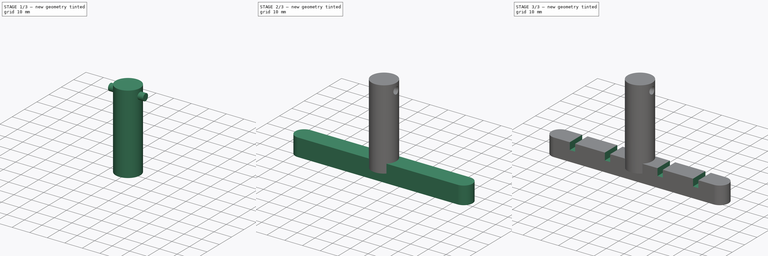
[diagram: build sequence overview — one tinted view per stage of 3, left to right]
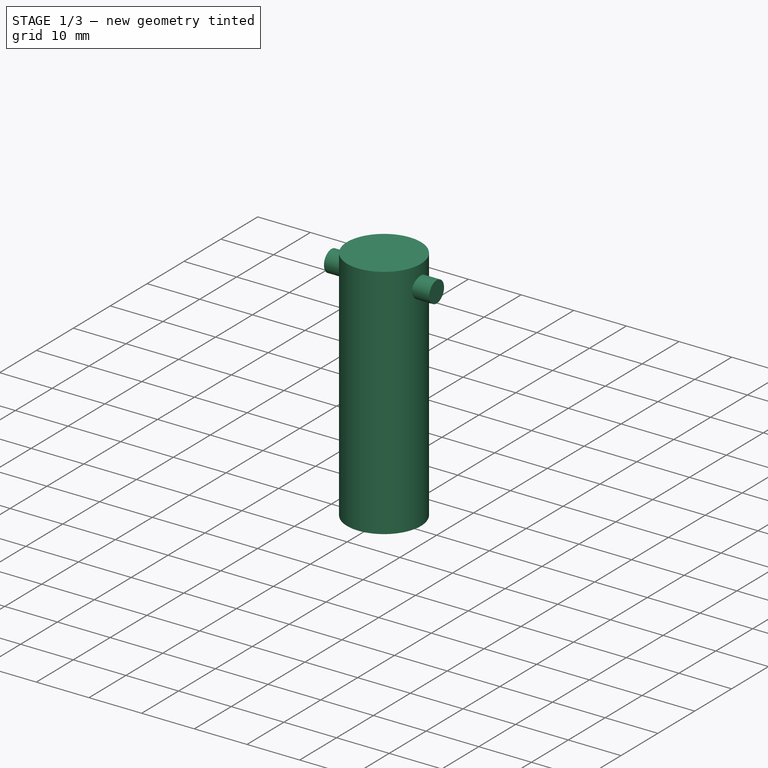
[diagram: stage 1 of 3 — iso view after this stage's code; geometry added in this stage tinted green]
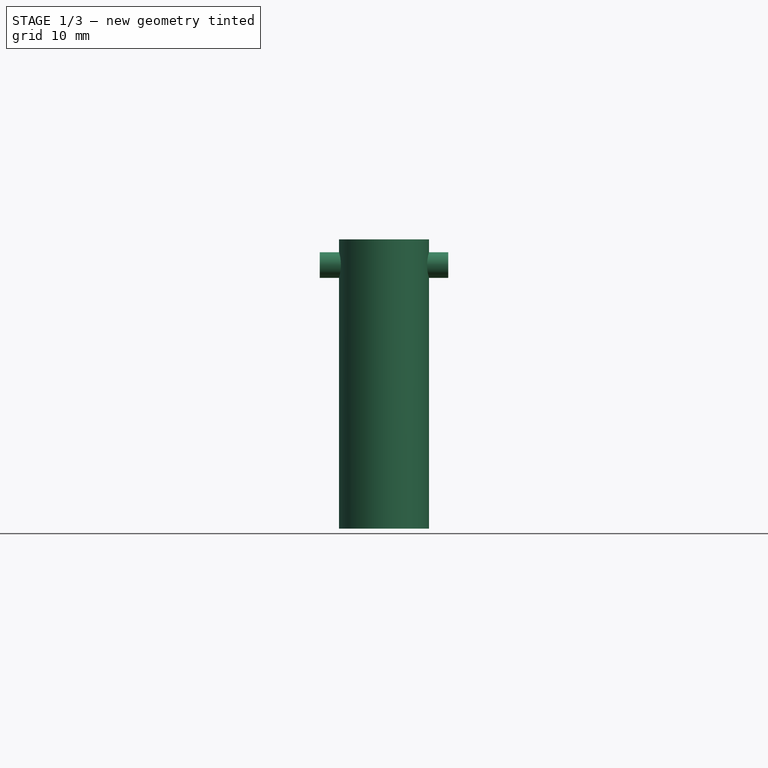
[diagram: stage 1 of 3 — front view after this stage's code; geometry added in this stage tinted green]
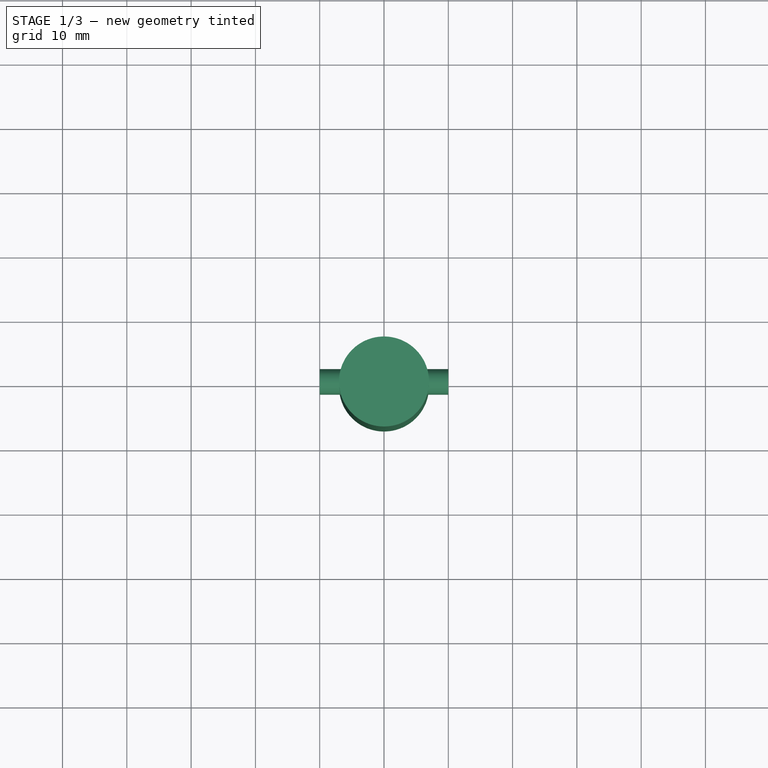
[diagram: stage 1 of 3 — top view after this stage's code; geometry added in this stage tinted green]
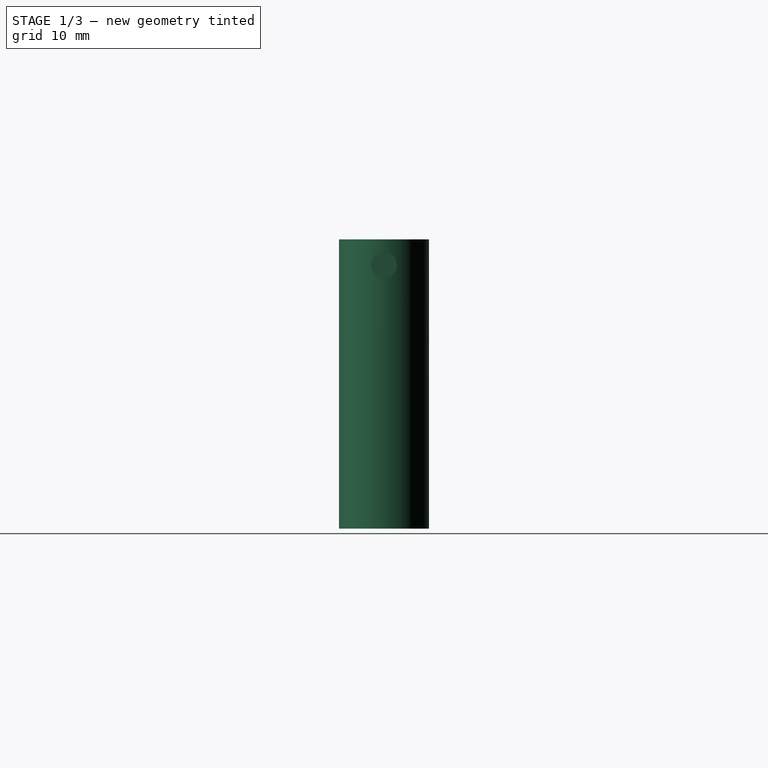
[diagram: stage 1 of 3 — right view after this stage's code; geometry added in this stage tinted green]
FCSTD DOCUMENT  (FreeCAD 0.16R6704 (Git))
Label: soporte pintura inferior
License: All rights reserved
LicenseURL: http://en.wikipedia.org/wiki/All_rights_reserved
objects: Sketcher::SketchObject×4, PartDesign::Pad×3, PartDesign::Fillet×1, PartDesign::Pocket×1, Part::Cut×1, Part::MultiFuse×1
note: 15 computed .brp shape members not serialized (recipe doc carries the construction recipe); baked Part::Feature solids carry a one-line shape summary decoded from their .brp

FEATURE [Sketcher::SketchObject] Sketch
  sketch-geometry (1):
    g0: Circle CenterX=0 CenterY=0 CenterZ=0 NormalX=0 NormalY=0 NormalZ=1 Radius=7
  constraints (2):
    c: Coincident(g0,g-1)
    c: Radius(g0) = 7
FEATURE [PartDesign::Pad] Pad
  Length = 45
  Length2 = 100
  Reversed = true
  Sketch = -> Sketch
  Type = 0
FEATURE [Sketcher::SketchObject] Sketch003
  Placement = pos=(0,0,-4) rot=(0,1,0;1.5708rad)
  sketch-geometry (1):
    g0: Circle CenterX=0 CenterY=0 CenterZ=0 NormalX=0 NormalY=0 NormalZ=1 Radius=2
  constraints (2):
    c: Coincident(g0,g-1)
    c: Radius(g0) = 2
FEATURE [PartDesign::Pad] Pad002
  Length = 20
  Length2 = 100
  Midplane = true
  Placement = pos=(0,0,-4) rot=(0,1,0;1.5708rad)
  Sketch = -> Sketch003
  Type = 0
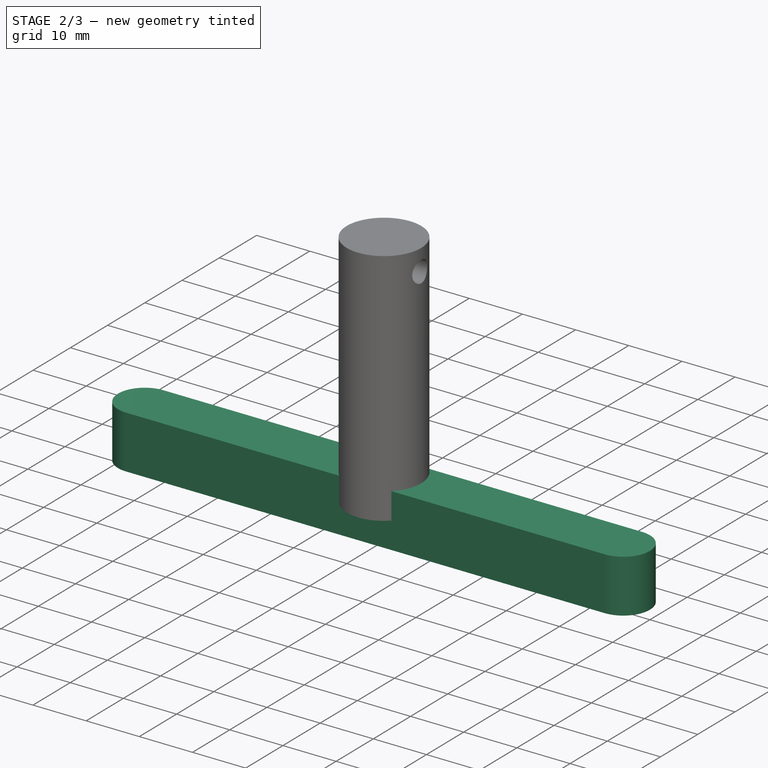
[diagram: stage 2 of 3 — iso view after this stage's code; geometry added in this stage tinted green]
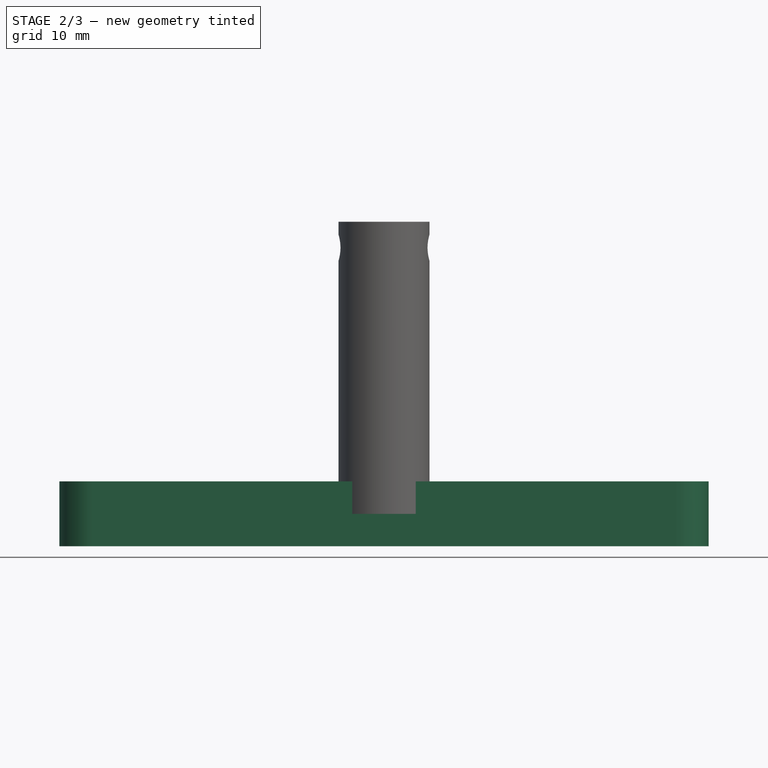
[diagram: stage 2 of 3 — front view after this stage's code; geometry added in this stage tinted green]
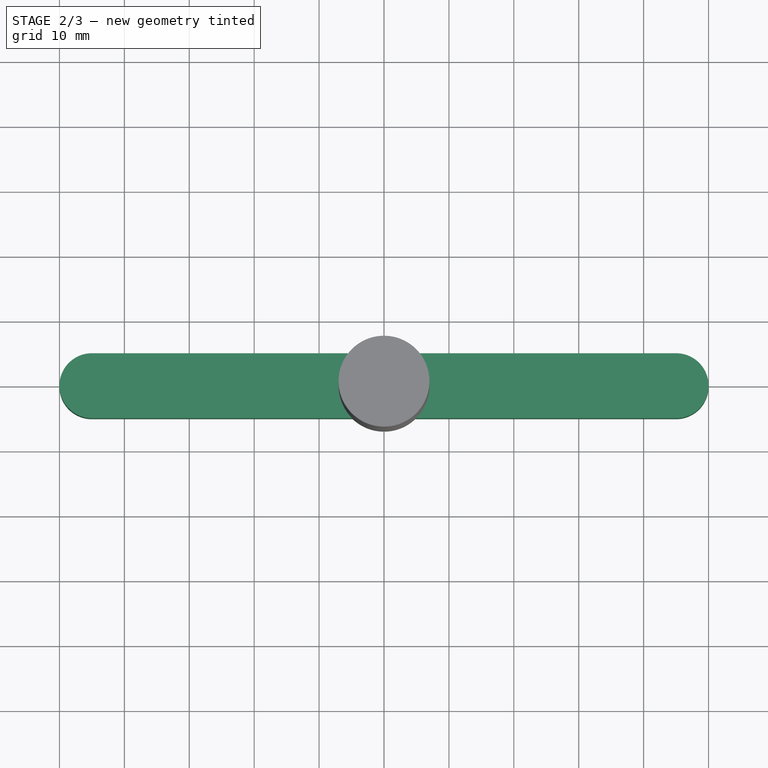
[diagram: stage 2 of 3 — top view after this stage's code; geometry added in this stage tinted green]
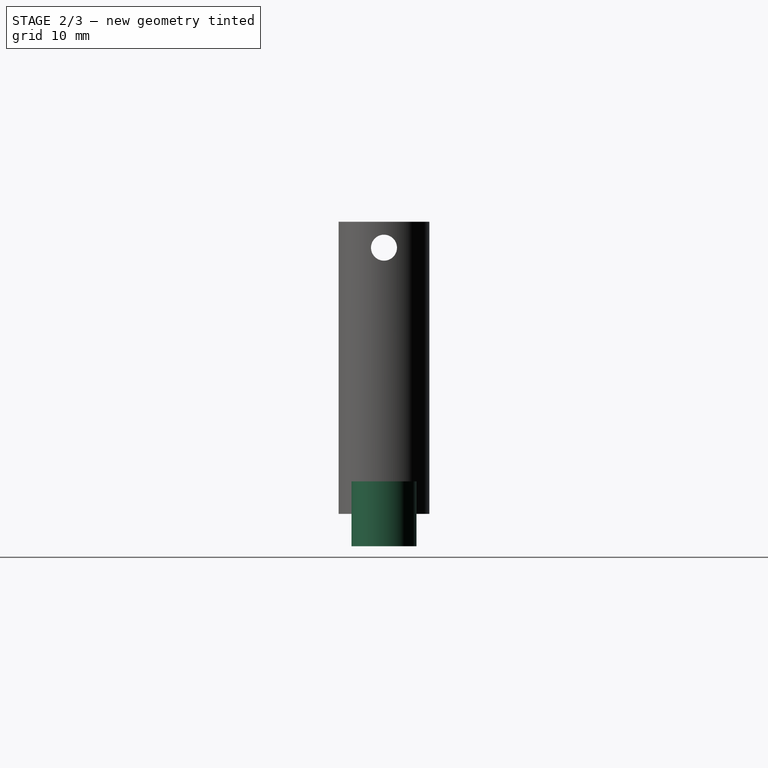
[diagram: stage 2 of 3 — right view after this stage's code; geometry added in this stage tinted green]
FEATURE [Sketcher::SketchObject] Sketch001
  Placement = pos=(0,0,-45) rot=(0,0,1;0rad)
  sketch-geometry (4):
    g0: LineSegment StartX=-50 StartY=5 StartZ=0 EndX=50 EndY=5 EndZ=0
    g1: LineSegment StartX=50 StartY=5 StartZ=0 EndX=50 EndY=-5 EndZ=0
    g2: LineSegment StartX=50 StartY=-5 StartZ=0 EndX=-50 EndY=-5 EndZ=0
    g3: LineSegment StartX=-50 StartY=-5 StartZ=0 EndX=-50 EndY=5 EndZ=0
  constraints (12):
    c: Coincident(g0,g1)
    c: Coincident(g1,g2)
    c: Coincident(g2,g3)
    c: Coincident(g3,g0)
    c: Horizontal(g0)
    c: Horizontal(g2)
    c: Vertical(g1)
    c: Vertical(g3)
    c: Symmetric(g0,g2,g-1)
    c: Symmetric(g0,g0,g-2)
    c: DistanceY(g1,g1) = 10
    c: DistanceX(g0,g0) = 100
FEATURE [PartDesign::Pad] Pad001
  Length = 10
  Length2 = 100
  Midplane = true
  Placement = pos=(0,0,-45) rot=(0,0,1;0rad)
  Sketch = -> Sketch001
  Type = 0
FEATURE [PartDesign::Fillet] Fillet
  Base = -> Pad001 [Edge1,Edge8,Edge2,Edge5]
  Placement = pos=(0,0,-45) rot=(0,0,1;0rad)
  Radius = 4.99
FEATURE [Part::Cut] Cut
  Base = -> Pad
  Tool = -> Pad002
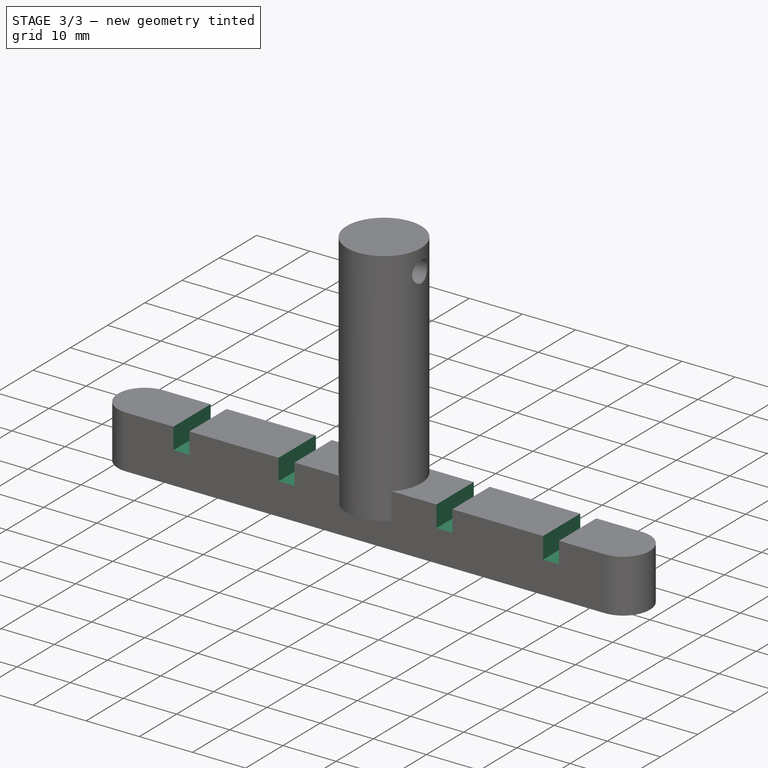
[diagram: stage 3 of 3 — iso view after this stage's code; geometry added in this stage tinted green]
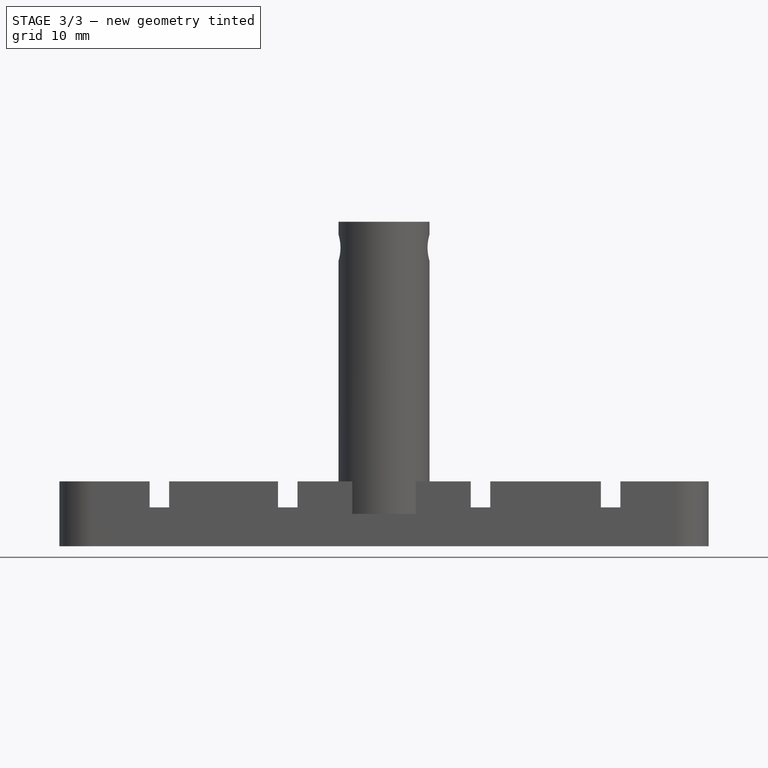
[diagram: stage 3 of 3 — front view after this stage's code; geometry added in this stage tinted green]
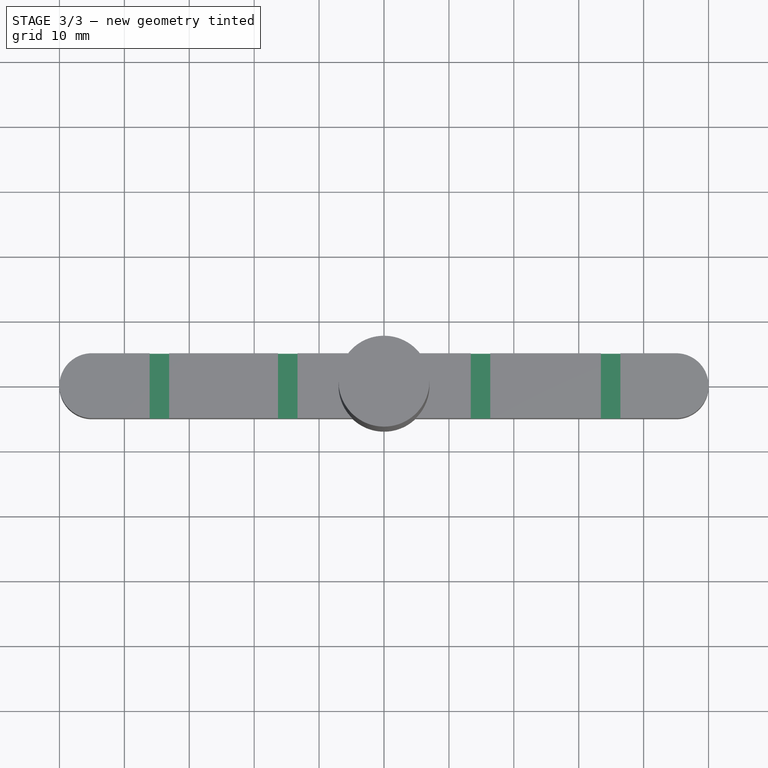
[diagram: stage 3 of 3 — top view after this stage's code; geometry added in this stage tinted green]
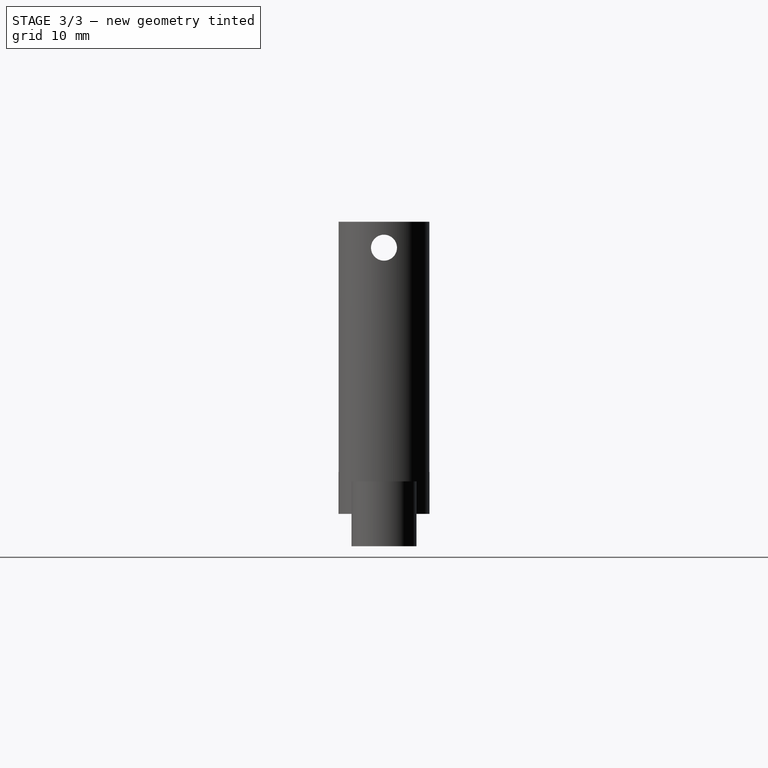
[diagram: stage 3 of 3 — right view after this stage's code; geometry added in this stage tinted green]
FEATURE [Sketcher::SketchObject] Sketch002
  Placement = pos=(0,0,-40) rot=(0,0,1;0rad)
  Support = -> Fillet [Face5]
  sketch-geometry (16):
    g0: LineSegment StartX=-36.1001 StartY=6.75222 StartZ=0 EndX=-33.1001 EndY=6.75222 EndZ=0
    g1: LineSegment StartX=-33.1001 StartY=6.75222 StartZ=0 EndX=-33.1001 EndY=-6.7694 EndZ=0
    g2: LineSegment StartX=-33.1001 StartY=-6.7694 StartZ=0 EndX=-36.1001 EndY=-6.7694 EndZ=0
    g3: LineSegment StartX=-36.1001 StartY=-6.7694 StartZ=0 EndX=-36.1001 EndY=6.75222 EndZ=0
    g4: LineSegment StartX=-16.3238 StartY=6.88224 StartZ=0 EndX=-13.3238 EndY=6.88224 EndZ=0
    g5: LineSegment StartX=-13.3238 StartY=6.88224 StartZ=0 EndX=-13.3238 EndY=-7.93954 EndZ=0
    g6: LineSegment StartX=-13.3238 StartY=-7.93954 StartZ=0 EndX=-16.3238 EndY=-7.93954 EndZ=0
    g7: LineSegment StartX=-16.3238 StartY=-7.93954 StartZ=0 EndX=-16.3238 EndY=6.88224 EndZ=0
    g8: LineSegment StartX=13.368 StartY=7.01225 StartZ=0 EndX=16.368 EndY=7.01225 EndZ=0
    g9: LineSegment StartX=16.368 StartY=7.01225 StartZ=0 EndX=16.368 EndY=-7.67951 EndZ=0
    g10: LineSegment StartX=16.368 StartY=-7.67951 StartZ=0 EndX=13.368 EndY=-7.67951 EndZ=0
    g11: LineSegment StartX=13.368 StartY=-7.67951 StartZ=0 EndX=13.368 EndY=7.01225 EndZ=0
    g12: LineSegment StartX=33.4164 StartY=6.88224 StartZ=0 EndX=36.4164 EndY=6.88224 EndZ=0
    g13: LineSegment StartX=36.4164 StartY=6.88224 StartZ=0 EndX=36.4164 EndY=-7.80953 EndZ=0
    g14: LineSegment StartX=36.4164 StartY=-7.80953 StartZ=0 EndX=33.4164 EndY=-7.80953 EndZ=0
    g15: LineSegment StartX=33.4164 StartY=-7.80953 StartZ=0 EndX=33.4164 EndY=6.88224 EndZ=0
  constraints (36):
    c: Coincident(g0,g1)
    c: Coincident(g1,g2)
    c: Coincident(g2,g3)
    c: Coincident(g3,g0)
    c: Horizontal(g0)
    c: Horizontal(g2)
    c: Vertical(g1)
    c: Vertical(g3)
    c: Coincident(g4,g5)
    c: Coincident(g5,g6)
    c: Coincident(g6,g7)
    c: Coincident(g7,g4)
    c: Horizontal(g4)
    c: Horizontal(g6)
    c: Vertical(g5)
    c: Vertical(g7)
    c: Coincident(g8,g9)
    c: Coincident(g9,g10)
    c: Coincident(g10,g11)
    c: Coincident(g11,g8)
    c: Horizontal(g8)
    c: Horizontal(g10)
    c: Vertical(g9)
    c: Vertical(g11)
    c: Coincident(g12,g13)
    c: Coincident(g13,g14)
    c: Coincident(g14,g15)
    c: Coincident(g15,g12)
    c: Horizontal(g12)
    c: Horizontal(g14)
    c: Vertical(g13)
    c: Vertical(g15)
    c: DistanceX(g2,g2) = 3
    c: DistanceX(g6,g6) = 3
    c: DistanceX(g8,g8) = 3
    c: DistanceX(g12,g12) = 3
FEATURE [PartDesign::Pocket] Pocket
  Length = 4
  Placement = pos=(0,0,-45) rot=(0,0,1;0rad)
  Sketch = -> Sketch002
  Type = 0
FEATURE [Part::MultiFuse] Fusion  label="Soporte pintura inferior"
  Shapes = -> [Pocket,Cut]
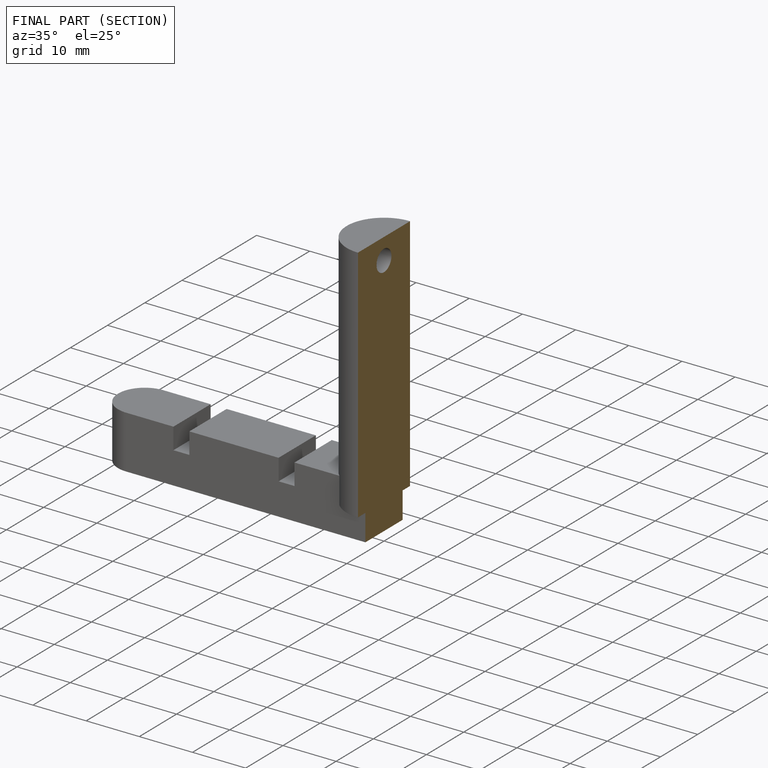
[diagram: finished part — half-section view (interior)]
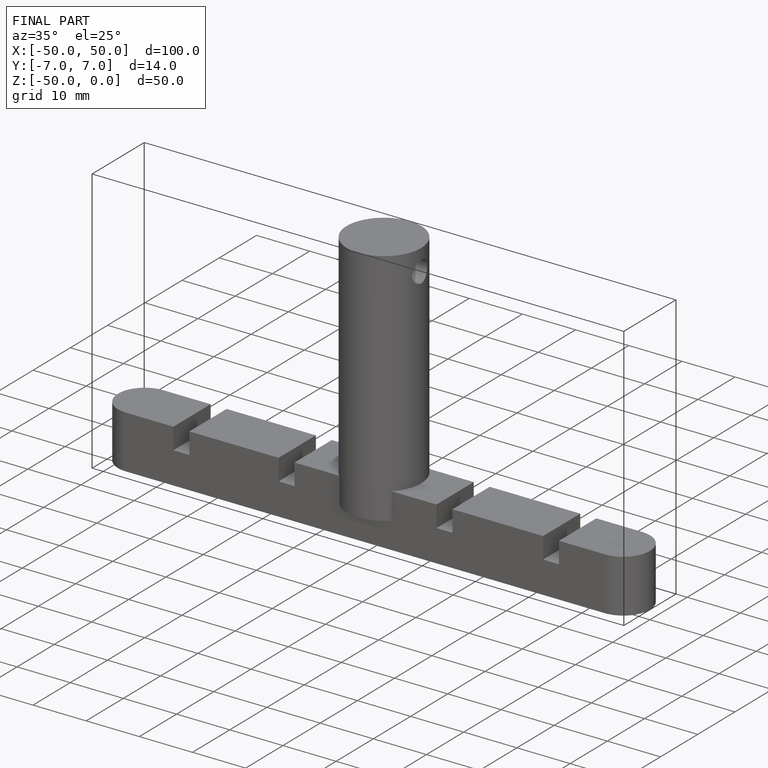
[diagram: finished part — iso view with bounding-box wireframe]
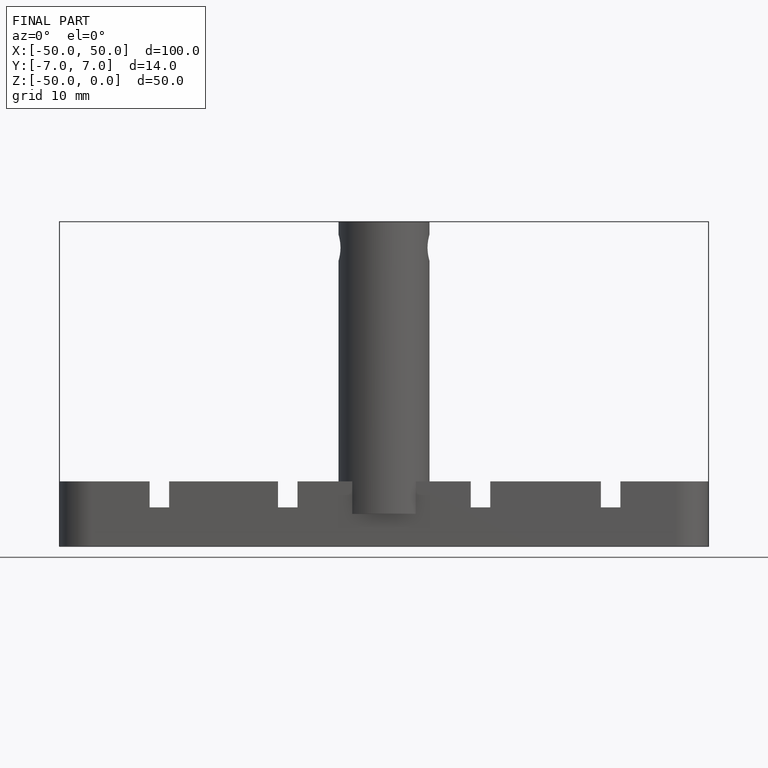
[diagram: finished part — front view with bounding-box wireframe]
